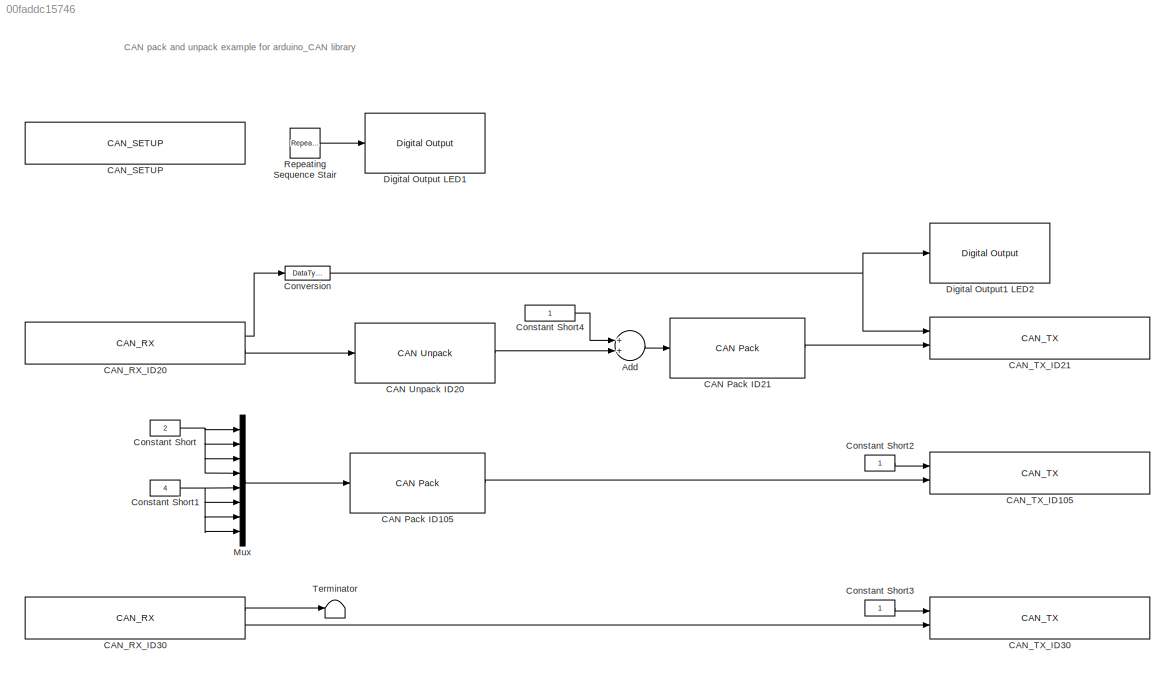
MODEL slx_00faddc15746
KIND model
CONFIG AbsTol = auto
CONFIG EnableMultiTasking = on
CONFIG FixedStep = 0.1
CONFIG MaxStep = auto
CONFIG MinStep = auto
CONFIG RelTol = 1e-3
CONFIG SampleTimeConstraint = Unconstrained
CONFIG Solver = FixedStepDiscrete
CONFIG SolverName = FixedStepDiscrete
CONFIG StartTime = 0.0
CONFIG StopTime = 10.0
BLOCK [Sum] Add
  InputSameDT = off
  OutDataTypeStr = Inherit: Inherit via internal rule
  Ports = [2, 1]
  SaturateOnIntegerOverflow = off
BLOCK [Reference] CAN Pack ID105  REF=canmsglib/CAN Pack
  Ports = [1, 1]
  SourceBlock = canmsglib/CAN Pack
  SourceProductBaseCode = XP
  SourceProductName = Simulink Real-Time
  SourceType = CAN Pack
BLOCK [Reference] CAN Pack ID21  REF=canmsglib/CAN Pack
  Ports = [1, 1]
  SourceBlock = canmsglib/CAN Pack
  SourceProductBaseCode = XP
  SourceProductName = Simulink Real-Time
  SourceType = CAN Pack
BLOCK [Reference] CAN Unpack ID20  REF=canmsglib/CAN Unpack
  Ports = [1, 1]
  SourceBlock = canmsglib/CAN Unpack
  SourceProductBaseCode = XP
  SourceProductName = Simulink Real-Time
  SourceType = CAN Unpack
BLOCK [Reference] CAN_RX_ID20  REF=arduino_CAN_library/CAN_RX
  Ports = [0, 2]
  SourceBlock = arduino_CAN_library/CAN_RX
  SourceType = arduino_CAN_rx_msg
BLOCK [Reference] CAN_RX_ID30  REF=arduino_CAN_library/CAN_RX
  Ports = [0, 2]
  SourceBlock = arduino_CAN_library/CAN_RX
  SourceType = arduino_CAN_rx_msg
BLOCK [Reference] CAN_SETUP  REF=arduino_CAN_library/CAN_SETUP
  Ports = []
  SourceBlock = arduino_CAN_library/CAN_SETUP
  SourceType = arduino_CAN_setup
BLOCK [Reference] CAN_TX_ID105  REF=arduino_CAN_library/CAN_TX
  Ports = [2]
  SourceBlock = arduino_CAN_library/CAN_TX
  SourceType = arduino_CAN_tx_msg
BLOCK [Reference] CAN_TX_ID21  REF=arduino_CAN_library/CAN_TX
  Ports = [2]
  SourceBlock = arduino_CAN_library/CAN_TX
  SourceType = arduino_CAN_tx_msg
BLOCK [Reference] CAN_TX_ID30  REF=arduino_CAN_library/CAN_TX
  Ports = [2]
  SourceBlock = arduino_CAN_library/CAN_TX
  SourceType = arduino_CAN_tx_msg
BLOCK [Constant] Constant Short
  OutDataTypeStr = uint8
  Value = 2
BLOCK [Constant] Constant Short1
  OutDataTypeStr = uint8
  Value = 4
BLOCK [Constant] Constant Short2
  OutDataTypeStr = uint8
BLOCK [Constant] Constant Short3
  OutDataTypeStr = uint8
BLOCK [Constant] Constant Short4
  OutDataTypeStr = uint8
BLOCK [DataTypeConversion] Conversion
  OutDataTypeStr = uint8
  RndMeth = Floor
  SaturateOnIntegerOverflow = off
BLOCK [Reference] Digital Output LED1  REF=arduinolib/Digital Output
  Ports = [1]
  SourceBlock = arduinolib/Digital Output
  SourceProductBaseCode = ARDUINO
  SourceProductName = Simulink Support Package for Arduino Hardware
  SourceType = Arduino Digital Output
BLOCK [Reference] Digital Output1 LED2  REF=arduinolib/Digital Output
  Ports = [1]
  SourceBlock = arduinolib/Digital Output
  SourceProductBaseCode = ARDUINO
  SourceProductName = Simulink Support Package for Arduino Hardware
  SourceType = Arduino Digital Output
BLOCK [Mux] Mux
  DisplayOption = bar
  Inputs = 8
  Ports = [8, 1]
BLOCK [Reference] Repeating Sequence Stair  REF=simulink/Sources/Repeating
Sequence
Stair
  Ports = [0, 1]
  SourceBlock = simulink/Sources/Repeating\nSequence\nStair
  SourceProductBaseCode = SL
  SourceProductName = Simulink
  SourceType = Repeating Sequence Stair
BLOCK [Terminator] Terminator
ANNOTATION (root): CAN pack and unpack example for arduino_CAN library
LINE Add:1 -> CAN Pack ID21:1
LINE CAN Pack ID105:1 -> CAN_TX_ID105:2
LINE CAN Pack ID21:1 -> CAN_TX_ID21:2
LINE CAN Unpack ID20:1 -> Add:2
LINE CAN_RX_ID20:1 -> Conversion:1
LINE CAN_RX_ID20:2 -> CAN Unpack ID20:1
LINE CAN_RX_ID30:1 -> Terminator:1
LINE CAN_RX_ID30:2 -> CAN_TX_ID30:2
NET Constant Short1:1 -> Mux:5, Mux:6, Mux:7, Mux:8
LINE Constant Short2:1 -> CAN_TX_ID105:1
LINE Constant Short3:1 -> CAN_TX_ID30:1
LINE Constant Short4:1 -> Add:1
NET Constant Short:1 -> Mux:1, Mux:2, Mux:3, Mux:4
NET Conversion:1 -> CAN_TX_ID21:1, Digital Output1 LED2:1
LINE Mux:1 -> CAN Pack ID105:1
LINE Repeating Sequence Stair:1 -> Digital Output LED1:1
note: NET lines group one-source signal fan-out (src -> all destinations, sorted); 1:1 wires keep LINE
